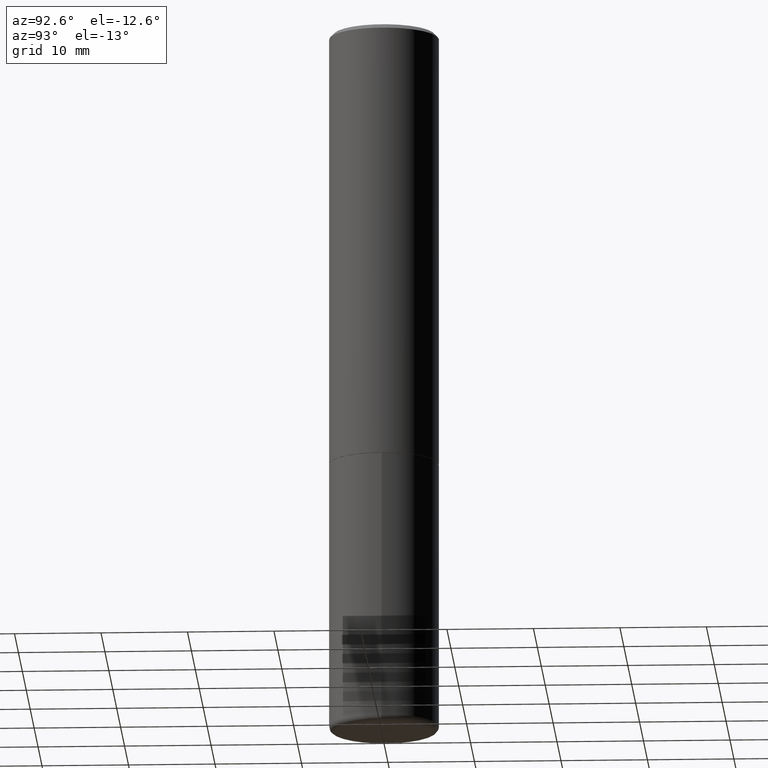
[diagram: clean part render]
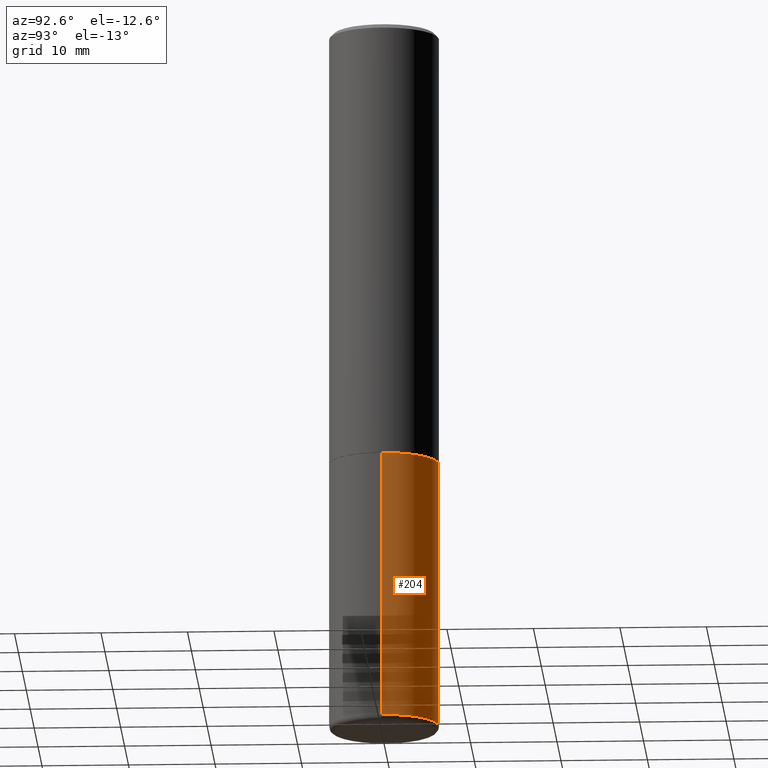
[diagram: same view with one face highlighted and labeled with its STEP entity id]
A machine part, auxiliary view. The second image highlights one B-rep face of the part: STEP entity #204.
In plain terms, the highlighted cylindrical surface (partial cylindrical patch) has radius 6.35 mm, axis along (-0, 0, 1).
Its self-contained STEP definition (entity closure, byte-faithful):
#19 = EDGE_CURVE ( 'NONE', #230, #311, #234, .T. ) ;
#26 = CYLINDRICAL_SURFACE ( 'NONE', #296, 0.2500000000000000000 ) ;
#28 = VERTEX_POINT ( 'NONE', #323 ) ;
#30 = DIRECTION ( 'NONE',  ( 1.000000000000000000, -6.982962677686263555E-15, 0.000000000000000000 ) ) ;
#31 = EDGE_LOOP ( 'NONE', ( #385, #165, #383, #223 ) ) ;
#55 = DIRECTION ( 'NONE',  ( -2.445468806185136597E-29, 3.491481338843145583E-15, 1.000000000000000000 ) ) ;
#87 = DIRECTION ( 'NONE',  ( 1.000000000000000000, -6.982962677686266711E-15, 0.000000000000000000 ) ) ;
#96 = EDGE_CURVE ( 'NONE', #28, #311, #335, .T. ) ;
#128 = CARTESIAN_POINT ( 'NONE',  ( -0.2499999999999998057, -9.466213071674679013E-15, -3.220000000000000195 ) ) ;
#129 = CARTESIAN_POINT ( 'NONE',  ( -0.2500000000000000000, -7.336409454980359463E-15, -2.000000000000000000 ) ) ;
#139 = CARTESIAN_POINT ( 'NONE',  ( 4.890937612370273194E-29, -6.982962677686291165E-15, -2.000000000000000000 ) ) ;
#150 = DIRECTION ( 'NONE',  ( -2.445468806185136597E-29, 3.491481338843145583E-15, 1.000000000000000000 ) ) ;
#158 = DIRECTION ( 'NONE',  ( -2.445468806185136597E-29, 3.491481338843145583E-15, 1.000000000000000000 ) ) ;
#165 = ORIENTED_EDGE ( 'NONE', *, *, #19, .T. ) ;
#169 = VERTEX_POINT ( 'NONE', #278 ) ;
#171 = VECTOR ( 'NONE', #202, 39.37007874015748143 ) ;
#176 = AXIS2_PLACEMENT_3D ( 'NONE', #312, #158, #30 ) ;
#184 = CIRCLE ( 'NONE', #176, 0.2499999999999999722 ) ;
#202 = DIRECTION ( 'NONE',  ( -2.445468806185136877E-29, 3.491481338843145188E-15, 1.000000000000000000 ) ) ;
#204 = ADVANCED_FACE ( 'NONE', ( #374 ), #26, .T. ) ;
#215 = CARTESIAN_POINT ( 'NONE',  ( 0.000000000000000000, 0.000000000000000000, 0.000000000000000000 ) ) ;
#223 = ORIENTED_EDGE ( 'NONE', *, *, #253, .F. ) ;
#230 = VERTEX_POINT ( 'NONE', #128 ) ;
#234 = LINE ( 'NONE', #361, #171 ) ;
#253 = EDGE_CURVE ( 'NONE', #169, #28, #406, .T. ) ;
#265 = AXIS2_PLACEMENT_3D ( 'NONE', #139, #150, #87 ) ;
#273 = CARTESIAN_POINT ( 'NONE',  ( 0.2500000000000000000, -1.745740669421566678E-15, 1.219044193948983948E-29 ) ) ;
#278 = CARTESIAN_POINT ( 'NONE',  ( 0.2499999999999998057, -1.298831058049649300E-14, -3.220000000000000195 ) ) ;
#296 = AXIS2_PLACEMENT_3D ( 'NONE', #215, #55, #410 ) ;
#311 = VERTEX_POINT ( 'NONE', #129 ) ;
#312 = CARTESIAN_POINT ( 'NONE',  ( 7.874409555916140425E-29, -1.124256991107492948E-14, -3.220000000000000195 ) ) ;
#323 = CARTESIAN_POINT ( 'NONE',  ( 0.2500000000000000000, -8.728703347107857054E-15, -2.000000000000000000 ) ) ;
#330 = EDGE_CURVE ( 'NONE', #169, #230, #184, .T. ) ;
#335 = CIRCLE ( 'NONE', #265, 0.2500000000000000000 ) ;
#361 = CARTESIAN_POINT ( 'NONE',  ( -0.2500000000000000000, 1.776356839400250465E-15, -1.229733772563726445E-29 ) ) ;
#369 = VECTOR ( 'NONE', #405, 39.37007874015748143 ) ;
#374 = FACE_OUTER_BOUND ( 'NONE', #31, .T. ) ;
#383 = ORIENTED_EDGE ( 'NONE', *, *, #96, .F. ) ;
#385 = ORIENTED_EDGE ( 'NONE', *, *, #330, .T. ) ;
#405 = DIRECTION ( 'NONE',  ( -2.445468806185136877E-29, 3.491481338843145188E-15, 1.000000000000000000 ) ) ;
#406 = LINE ( 'NONE', #273, #369 ) ;
#410 = DIRECTION ( 'NONE',  ( 1.000000000000000000, -6.982962677686266711E-15, 4.876176775795935793E-29 ) ) ;